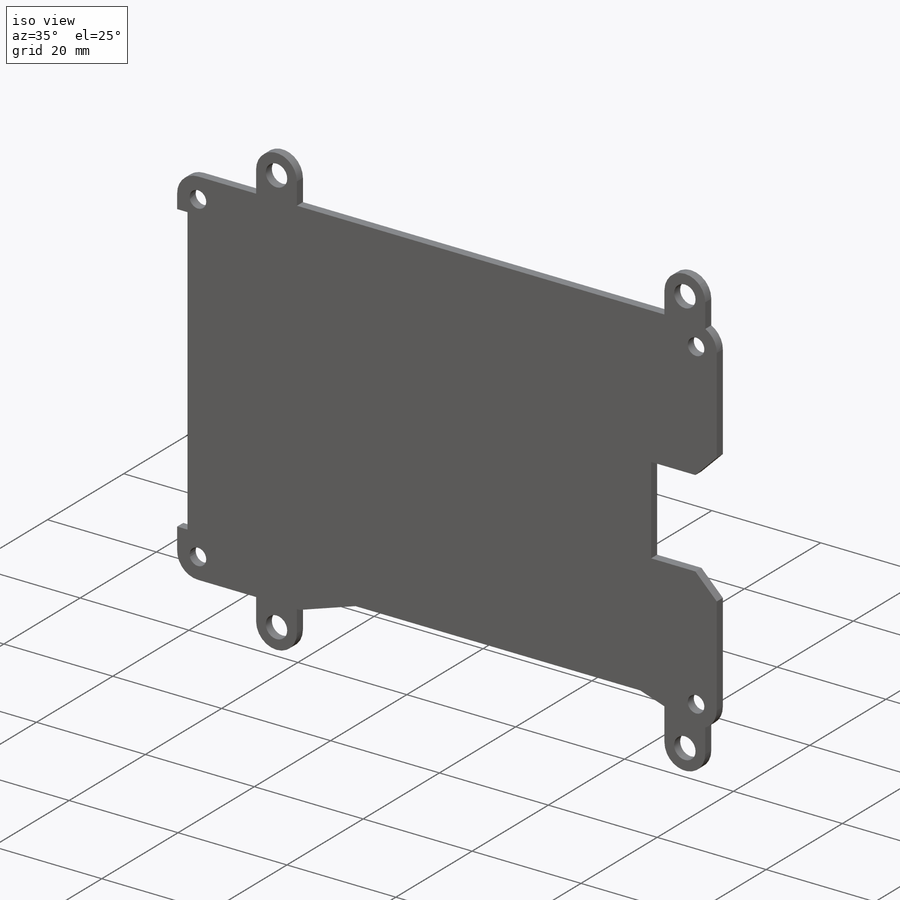
[diagram: iso view]
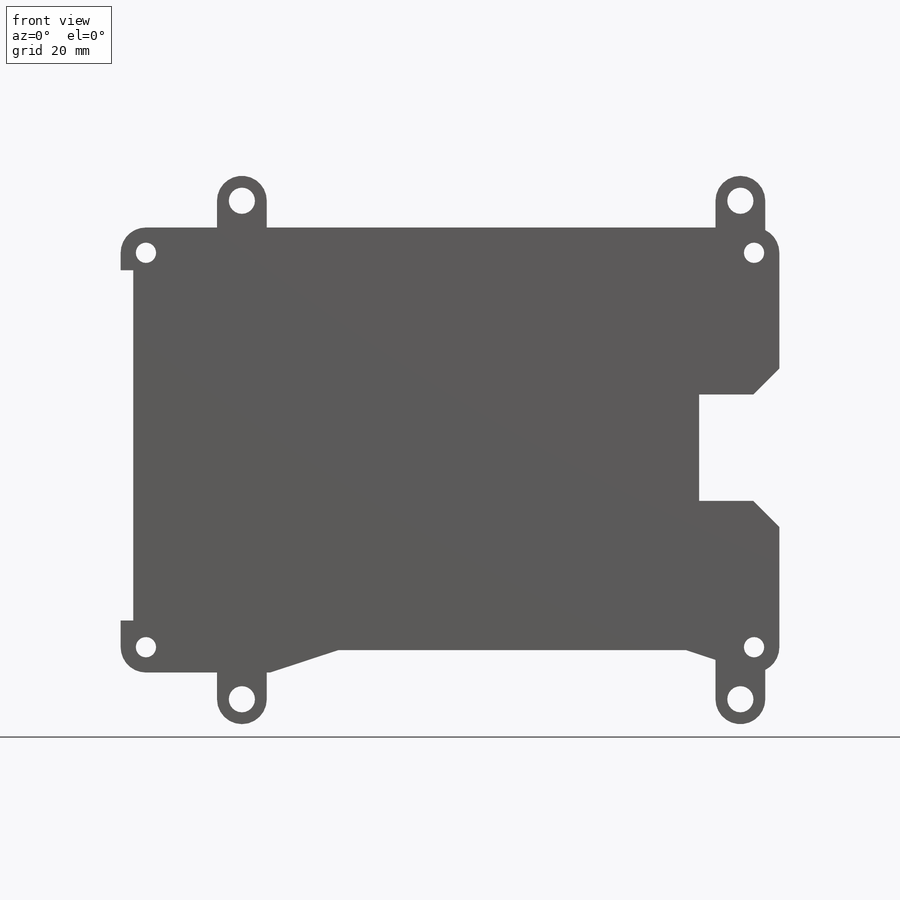
[diagram: front view]
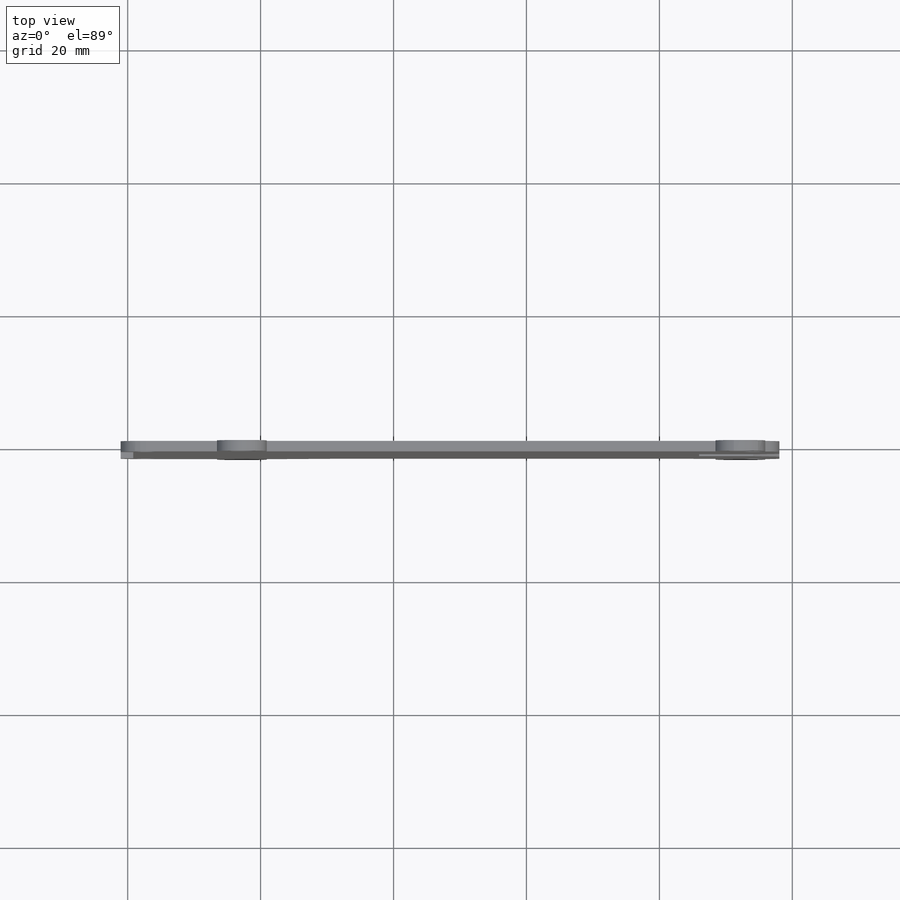
[diagram: top view]
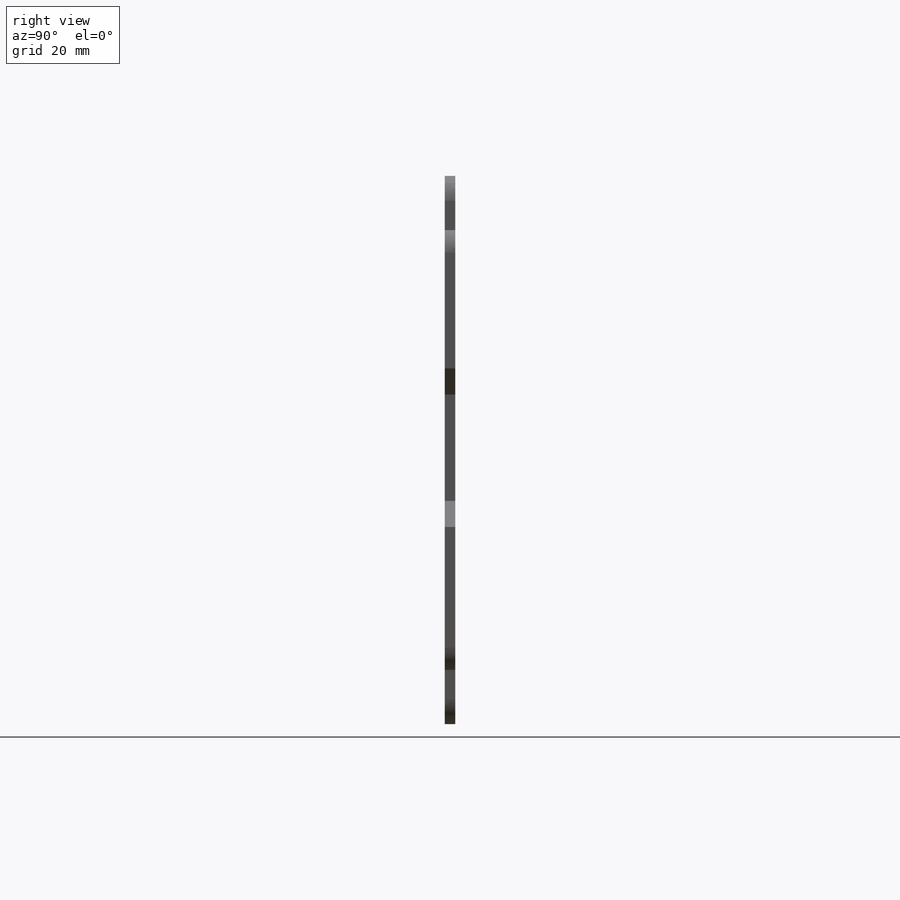
[diagram: right view]
SOLIDWORKS PART (.sldprt)
format: sldprt  version: not decoded by parser v0  size: 931,840 bytes
history: native  units: mm
features: sketch x5, extrude x5, material x1 (+11 scaffold rows collapsed)
feature tree (22):
  scaffold x11  (default folders/planes/origin — collapsed)
  material  "Material <not specified>"
  sketch  "Sketch1"  dims[D7=3.048mm D1=~17.39265mm D2=~3.93065mm D3=16.002mm D4=~3.93065mm D5=~8.13435mm D6=~3.93065mm]
  extrude  "Boss-Extrude1"  Depth=1.5875mm
  sketch  "Sketch2"  dims[D1=6.35mm D2=38.1mm D3=19.05mm]
  extrude  "Boss-Extrude2"  Depth=1.5875mm
  sketch  "Sketch6"  dims[c1.D2=6.858mm c1.D3=3.5687mm c1.D4=6.858mm c1.D5=6.858mm c1.D6=3.429mm c1.D7=6.858mm c1.D1=63.5mm c2.D4=5.08mm c2.D7=7.62mm c2.D8=38.1mm]
  extrude  "Boss-Extrude4"  [1 undecoded]
  sketch  "Sketch7"  dims[D1=3.5687mm D3=6.858mm D2=63.5mm D4=5.08mm D5=76.2mm]
  extrude  "Boss-Extrude5"  [1 undecoded]
  sketch  "Sketch8"  dims[D3=3.937mm D1=75.0mm D2=75.0mm D4=~14.432534mm D5=1.778mm]
  extrude  "Boss-Extrude6"  [1 undecoded]
decode coverage: 7 of 10 modeling features carry decoded parameters
note: ~ marks probable driven/reference dimensions
note: 3 parameter values undecoded
summary: no parameter record found for 3 features
note: suppression state not decoded; provenance and decode notes live in map.json
